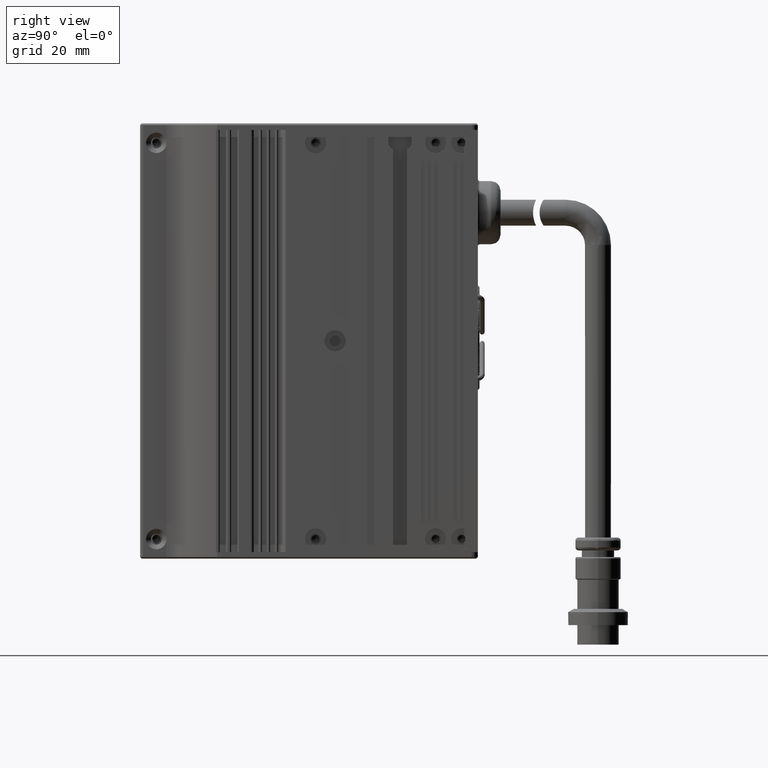
[diagram: clean part render]
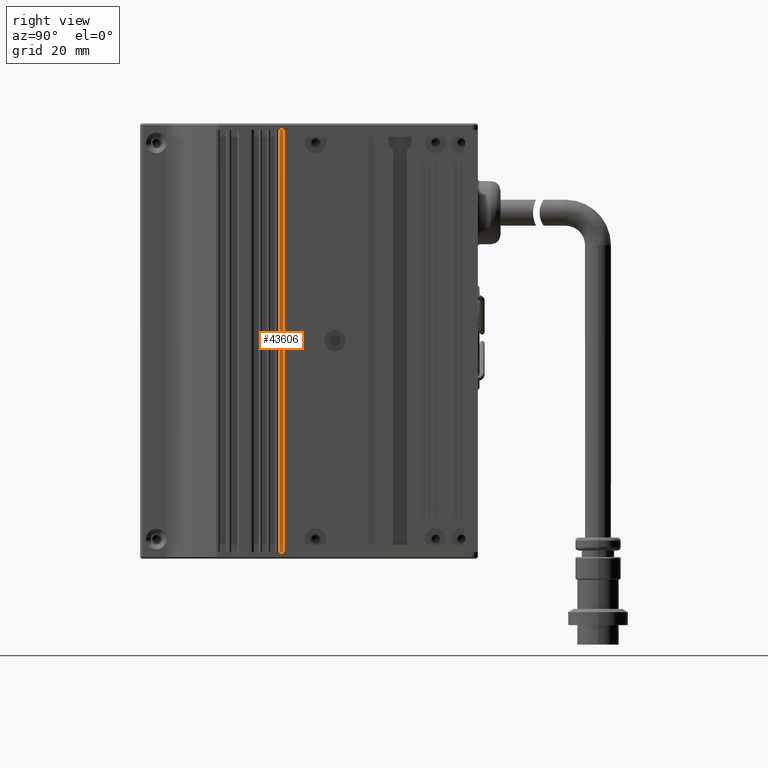
[diagram: same view with one face highlighted and labeled with its STEP entity id]
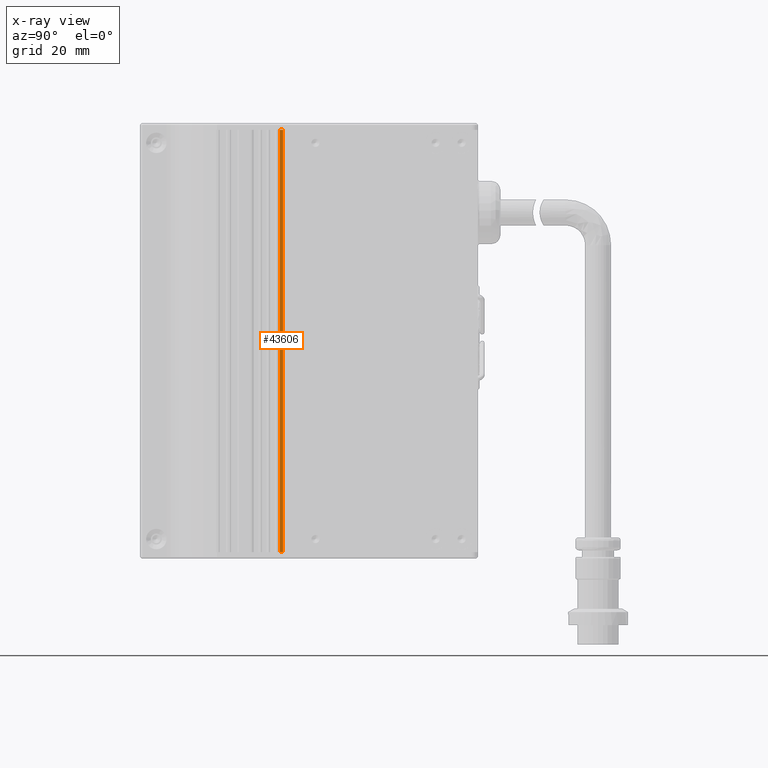
[diagram: x-ray of the same camera — body ghosted, the highlighted face saturated]
A machine part, right view. The second image highlights one B-rep face of the part: STEP entity #43606.
The next image is the same camera in x-ray: the body ghosted, the highlighted face saturated — about 0% of this face is hidden behind the body in this view.
In plain terms, the highlighted cylindrical surface (edge-blend (fillet) strip) has radius 1 mm, axis along (0, 0, 1).
Its self-contained STEP definition (entity closure, byte-faithful):
#898 = DIRECTION ( 'NONE',  ( 0.0000000000000000000, 1.665334536937734300E-016, 1.000000000000000000 ) ) ;
#4367 = EDGE_LOOP ( 'NONE', ( #64617, #31869, #44501, #39193 ) ) ;
#8731 = CYLINDRICAL_SURFACE ( 'NONE', #55499, 1.000000000000000900 ) ;
#9731 = CARTESIAN_POINT ( 'NONE',  ( -14.66201180637544800, -15.99547579693033600, -65.00000000000000000 ) ) ;
#11039 = VECTOR ( 'NONE', #58387, 1000.000000000000000 ) ;
#13208 = CARTESIAN_POINT ( 'NONE',  ( -15.66201180637545000, -16.99547579693031800, 65.00000000000000000 ) ) ;
#13792 = VERTEX_POINT ( 'NONE', #9731 ) ;
#18094 = VERTEX_POINT ( 'NONE', #59817 ) ;
#19579 = EDGE_CURVE ( 'NONE', #13792, #25412, #49647, .T. ) ;
#21021 = AXIS2_PLACEMENT_3D ( 'NONE', #70473, #38402, #42502 ) ;
#22516 = DIRECTION ( 'NONE',  ( -0.0000000000000000000, 1.665334536937734300E-016, 1.000000000000000000 ) ) ;
#23257 = LINE ( 'NONE', #13208, #11039 ) ;
#23628 = CIRCLE ( 'NONE', #21021, 1.000000000000000900 ) ;
#25412 = VERTEX_POINT ( 'NONE', #45613 ) ;
#31869 = ORIENTED_EDGE ( 'NONE', *, *, #40268, .F. ) ;
#33007 = CARTESIAN_POINT ( 'NONE',  ( -14.66201180637544800, -16.99547579693033600, -65.00000000000000000 ) ) ;
#35044 = CIRCLE ( 'NONE', #65165, 1.000000000000000900 ) ;
#38402 = DIRECTION ( 'NONE',  ( -0.0000000000000000000, -1.665334536937734300E-016, -1.000000000000000000 ) ) ;
#39193 = ORIENTED_EDGE ( 'NONE', *, *, #42999, .F. ) ;
#40268 = EDGE_CURVE ( 'NONE', #13792, #18094, #35044, .T. ) ;
#42502 = DIRECTION ( 'NONE',  ( 1.000000000000000000, 0.0000000000000000000, 0.0000000000000000000 ) ) ;
#42999 = EDGE_CURVE ( 'NONE', #61012, #25412, #23628, .T. ) ;
#43606 = ADVANCED_FACE ( 'NONE', ( #47761 ), #8731, .F. ) ;
#44136 = DIRECTION ( 'NONE',  ( 1.000000000000000000, 0.0000000000000000000, 0.0000000000000000000 ) ) ;
#44501 = ORIENTED_EDGE ( 'NONE', *, *, #19579, .T. ) ;
#45613 = CARTESIAN_POINT ( 'NONE',  ( -14.66201180637544800, -15.99547579693031600, 65.00000000000000000 ) ) ;
#47761 = FACE_OUTER_BOUND ( 'NONE', #4367, .T. ) ;
#49647 = LINE ( 'NONE', #58770, #70550 ) ;
#50899 = DIRECTION ( 'NONE',  ( 1.000000000000000000, 0.0000000000000000000, 0.0000000000000000000 ) ) ;
#55499 = AXIS2_PLACEMENT_3D ( 'NONE', #62359, #898, #50899 ) ;
#58387 = DIRECTION ( 'NONE',  ( -0.0000000000000000000, -1.665334536937734300E-016, -1.000000000000000000 ) ) ;
#58727 = CARTESIAN_POINT ( 'NONE',  ( -15.66201180637545000, -16.99547579693031800, 65.00000000000000000 ) ) ;
#58770 = CARTESIAN_POINT ( 'NONE',  ( -14.66201180637544800, -15.99547579693031600, 65.00000000000000000 ) ) ;
#59817 = CARTESIAN_POINT ( 'NONE',  ( -15.66201180637545000, -16.99547579693033600, -65.00000000000000000 ) ) ;
#61012 = VERTEX_POINT ( 'NONE', #58727 ) ;
#62359 = CARTESIAN_POINT ( 'NONE',  ( -14.66201180637544800, -16.99547579693031800, 65.00000000000000000 ) ) ;
#63868 = EDGE_CURVE ( 'NONE', #61012, #18094, #23257, .T. ) ;
#64617 = ORIENTED_EDGE ( 'NONE', *, *, #63868, .T. ) ;
#65165 = AXIS2_PLACEMENT_3D ( 'NONE', #33007, #66500, #44136 ) ;
#66500 = DIRECTION ( 'NONE',  ( 0.0000000000000000000, 1.665334536937734300E-016, 1.000000000000000000 ) ) ;
#70473 = CARTESIAN_POINT ( 'NONE',  ( -14.66201180637544800, -16.99547579693031800, 65.00000000000000000 ) ) ;
#70550 = VECTOR ( 'NONE', #22516, 1000.000000000000000 ) ;